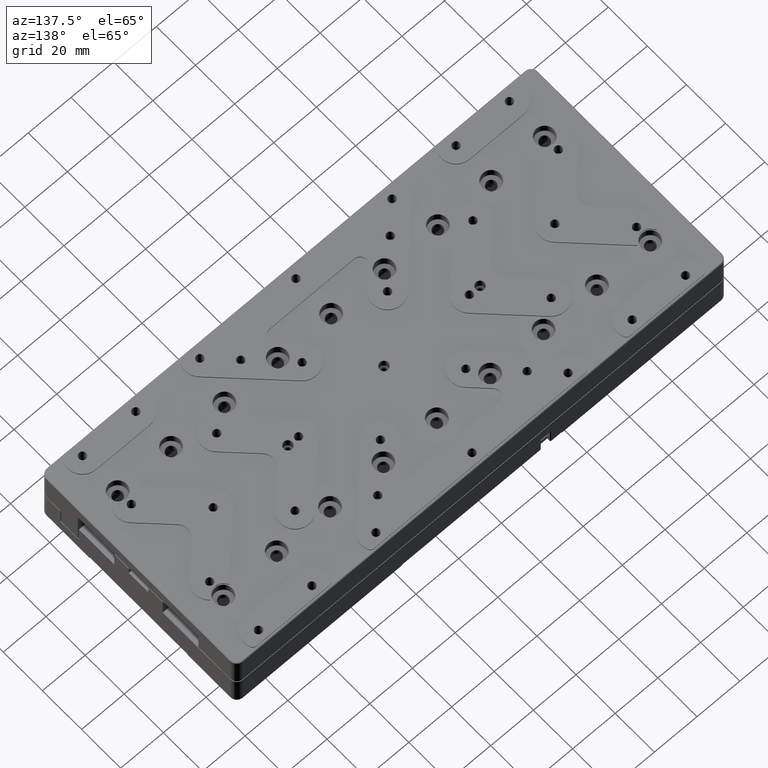
[diagram: clean part render]
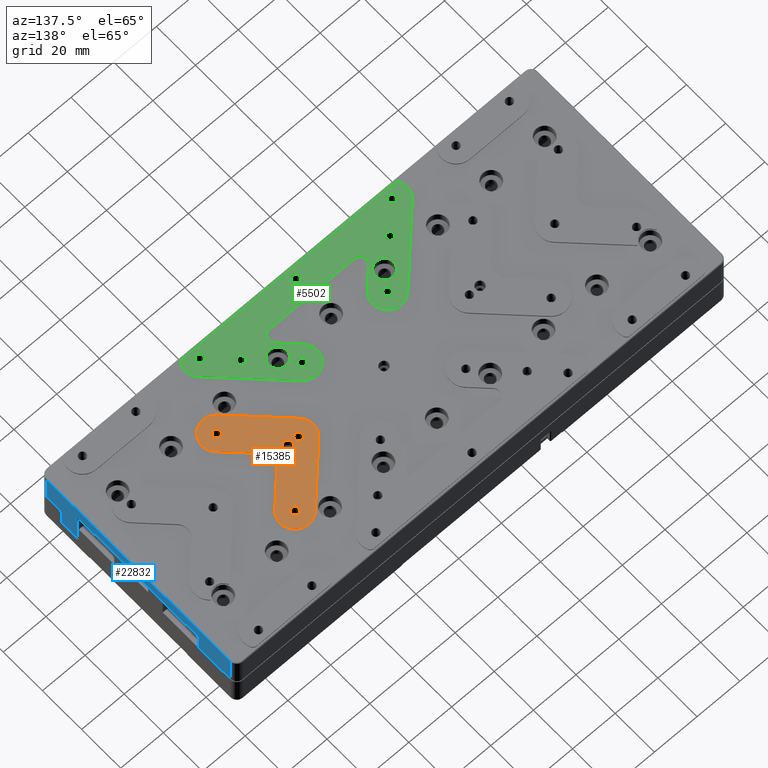
[diagram: same view with three faces highlighted in distinct colors, each labeled with its STEP entity id]
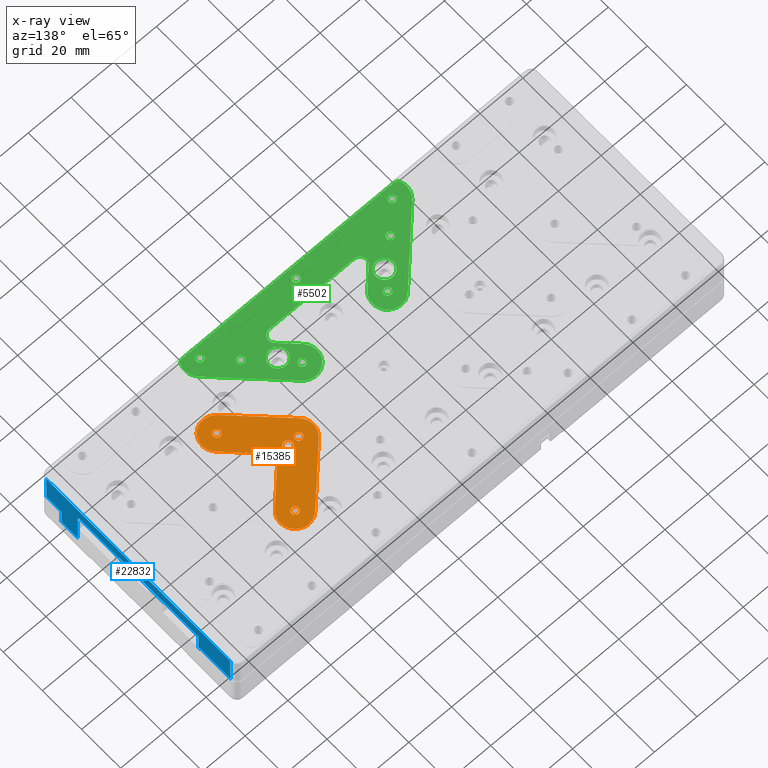
[diagram: x-ray of the same camera — body ghosted, the three highlighted faces saturated]
A machine part, auxiliary view with three faces highlighted in distinct colors.
The next image is the same camera in x-ray (body ghosted, the three faces saturated) — at least one of them is partly hidden behind the body in this view.
Their STEP definitions:

[orange] entity #15385 — the highlighted planar face has unit normal (0, 0, 1).
#314 = LINE ( 'NONE', #17709, #11322 ) ;
#654 = AXIS2_PLACEMENT_3D ( 'NONE', #10701, #25652, #17117 ) ;
#721 = VERTEX_POINT ( 'NONE', #7153 ) ;
#823 = FACE_BOUND ( 'NONE', #15204, .T. ) ;
#989 = EDGE_CURVE ( 'NONE', #9625, #9081, #15177, .T. ) ;
#1246 = DIRECTION ( 'NONE',  ( 1.000000000000000000, 0.000000000000000000, -0.000000000000000000 ) ) ;
#1557 = CARTESIAN_POINT ( 'NONE',  ( 35.05025253168999910, 4.949747468305999654, 15.50000000000000000 ) ) ;
#1886 = DIRECTION ( 'NONE',  ( -0.000000000000000000, -0.000000000000000000, -1.000000000000000000 ) ) ;
#2307 = ORIENTED_EDGE ( 'NONE', *, *, #16614, .T. ) ;
#2621 = ORIENTED_EDGE ( 'NONE', *, *, #24606, .T. ) ;
#2781 = VECTOR ( 'NONE', #17166, 1000.000000000000114 ) ;
#2789 = DIRECTION ( 'NONE',  ( -0.000000000000000000, -0.000000000000000000, -1.000000000000000000 ) ) ;
#3282 = CARTESIAN_POINT ( 'NONE',  ( 64.94974746830999379, 15.05025253169000266, 15.50000000000000000 ) ) ;
#4767 = DIRECTION ( 'NONE',  ( -0.000000000000000000, -0.000000000000000000, -1.000000000000000000 ) ) ;
#5263 = FACE_BOUND ( 'NONE', #21698, .T. ) ;
#5350 = VERTEX_POINT ( 'NONE', #3282 ) ;
#5999 = VERTEX_POINT ( 'NONE', #7360 ) ;
#6330 = DIRECTION ( 'NONE',  ( 1.000000000000000000, 0.000000000000000000, 0.000000000000000000 ) ) ;
#6531 = CARTESIAN_POINT ( 'NONE',  ( 60.00000000000000000, -20.00000000000000000, 15.50000000000000000 ) ) ;
#7152 = CARTESIAN_POINT ( 'NONE',  ( 35.05025253169100097, 4.949747468306999743, 15.50000000000000000 ) ) ;
#7153 = CARTESIAN_POINT ( 'NONE',  ( 61.64999999999999858, -20.00000000000000000, 15.50000000000000000 ) ) ;
#7360 = CARTESIAN_POINT ( 'NONE',  ( 64.94974746830466472, -15.05025253169533173, 15.50000000000000000 ) ) ;
#8470 = LINE ( 'NONE', #14871, #2781 ) ;
#8590 = CIRCLE ( 'NONE', #17699, 1.649999999999998579 ) ;
#8717 = ORIENTED_EDGE ( 'NONE', *, *, #8828, .F. ) ;
#8828 = EDGE_CURVE ( 'NONE', #5999, #23099, #22936, .T. ) ;
#9038 = CARTESIAN_POINT ( 'NONE',  ( 55.05025253168999910, -24.94974746831000090, 15.50000000000000000 ) ) ;
#9081 = VERTEX_POINT ( 'NONE', #23981 ) ;
#9519 = FACE_BOUND ( 'NONE', #24902, .T. ) ;
#9625 = VERTEX_POINT ( 'NONE', #22496 ) ;
#9796 = PLANE ( 'NONE',  #19444 ) ;
#9937 = ORIENTED_EDGE ( 'NONE', *, *, #21035, .T. ) ;
#10356 = DIRECTION ( 'NONE',  ( 0.000000000000000000, 0.000000000000000000, 1.000000000000000000 ) ) ;
#10651 = AXIS2_PLACEMENT_3D ( 'NONE', #6531, #2789, #26031 ) ;
#10701 = CARTESIAN_POINT ( 'NONE',  ( 60.00000000000000000, 20.00000000000000000, 15.50000000000000000 ) ) ;
#10856 = VECTOR ( 'NONE', #23197, 1000.000000000000114 ) ;
#10977 = VERTEX_POINT ( 'NONE', #17968 ) ;
#11017 = DIRECTION ( 'NONE',  ( 1.000000000000000000, 0.000000000000000000, 0.000000000000000000 ) ) ;
#11032 = EDGE_CURVE ( 'NONE', #10977, #21603, #11821, .T. ) ;
#11177 = LINE ( 'NONE', #9038, #24583 ) ;
#11256 = DIRECTION ( 'NONE',  ( 1.000000000000000000, 0.000000000000000000, 0.000000000000000000 ) ) ;
#11322 = VECTOR ( 'NONE', #26384, 1000.000000000000114 ) ;
#11480 = CARTESIAN_POINT ( 'NONE',  ( 60.00000000000000000, 20.00000000000000000, 15.50000000000000000 ) ) ;
#11610 = ORIENTED_EDGE ( 'NONE', *, *, #13582, .T. ) ;
#11821 = LINE ( 'NONE', #1557, #10856 ) ;
#12380 = CARTESIAN_POINT ( 'NONE',  ( 47.00000000000000000, 0.000000000000000000, 15.50000000000000000 ) ) ;
#12464 = DIRECTION ( 'NONE',  ( 1.000000000000000000, 1.776356839400251648E-15, 0.000000000000000000 ) ) ;
#12804 = CIRCLE ( 'NONE', #23277, 7.000000000000006217 ) ;
#12949 = EDGE_CURVE ( 'NONE', #9081, #5350, #8470, .T. ) ;
#13052 = EDGE_CURVE ( 'NONE', #20718, #23099, #11177, .T. ) ;
#13305 = CIRCLE ( 'NONE', #18300, 6.999999999999999112 ) ;
#13503 = ORIENTED_EDGE ( 'NONE', *, *, #13052, .T. ) ;
#13582 = EDGE_CURVE ( 'NONE', #5999, #9625, #314, .T. ) ;
#13848 = CIRCLE ( 'NONE', #654, 1.649999999999998579 ) ;
#14131 = CARTESIAN_POINT ( 'NONE',  ( 41.64999999999999858, 0.000000000000000000, 15.50000000000000000 ) ) ;
#14270 = EDGE_LOOP ( 'NONE', ( #2621 ) ) ;
#14540 = EDGE_CURVE ( 'NONE', #25656, #25656, #24080, .T. ) ;
#14871 = CARTESIAN_POINT ( 'NONE',  ( 64.94974746830999379, 15.05025253169000088, 15.50000000000000000 ) ) ;
#15004 = CARTESIAN_POINT ( 'NONE',  ( 40.00000000000000000, 0.000000000000000000, 15.50000000000000000 ) ) ;
#15177 = CIRCLE ( 'NONE', #18822, 4.999999999999997335 ) ;
#15204 = EDGE_LOOP ( 'NONE', ( #20641 ) ) ;
#15385 = ADVANCED_FACE ( 'NONE', ( #5263, #22623, #823, #9519, #20495 ), #9796, .T. ) ;
#15595 = DIRECTION ( 'NONE',  ( 0.7071067811865474617, -0.7071067811865474617, -0.000000000000000000 ) ) ;
#16217 = ORIENTED_EDGE ( 'NONE', *, *, #989, .T. ) ;
#16301 = DIRECTION ( 'NONE',  ( 1.000000000000000000, 0.000000000000000000, 0.000000000000000000 ) ) ;
#16323 = DIRECTION ( 'NONE',  ( -0.000000000000000000, -0.000000000000000000, -1.000000000000000000 ) ) ;
#16357 = CARTESIAN_POINT ( 'NONE',  ( -115.0000000000000000, 50.00000000000000000, 15.50000000000000000 ) ) ;
#16614 = EDGE_CURVE ( 'NONE', #721, #721, #8590, .T. ) ;
#17117 = DIRECTION ( 'NONE',  ( 1.000000000000000000, 0.000000000000000000, 0.000000000000000000 ) ) ;
#17166 = DIRECTION ( 'NONE',  ( 0.7071067811865474617, 0.7071067811865474617, -0.000000000000000000 ) ) ;
#17299 = CARTESIAN_POINT ( 'NONE',  ( 45.00000000000000000, 0.000000000000000000, 15.50000000000000000 ) ) ;
#17377 = ORIENTED_EDGE ( 'NONE', *, *, #20790, .F. ) ;
#17699 = AXIS2_PLACEMENT_3D ( 'NONE', #19670, #19820, #11256 ) ;
#17709 = CARTESIAN_POINT ( 'NONE',  ( 53.43502884253999952, -3.535533905933000653, 15.50000000000000000 ) ) ;
#17968 = CARTESIAN_POINT ( 'NONE',  ( 55.05025253169308286, 24.94974746830691714, 15.50000000000000000 ) ) ;
#18300 = AXIS2_PLACEMENT_3D ( 'NONE', #15004, #4767, #11017 ) ;
#18647 = ORIENTED_EDGE ( 'NONE', *, *, #12949, .T. ) ;
#18822 = AXIS2_PLACEMENT_3D ( 'NONE', #25427, #16323, #12464 ) ;
#19135 = CARTESIAN_POINT ( 'NONE',  ( 40.00000000000000000, 0.000000000000000000, 15.50000000000000000 ) ) ;
#19444 = AXIS2_PLACEMENT_3D ( 'NONE', #16357, #10356, #1246 ) ;
#19670 = CARTESIAN_POINT ( 'NONE',  ( 60.00000000000000000, -20.00000000000000000, 15.50000000000000000 ) ) ;
#19820 = DIRECTION ( 'NONE',  ( -0.000000000000000000, -0.000000000000000000, -1.000000000000000000 ) ) ;
#19959 = ORIENTED_EDGE ( 'NONE', *, *, #21041, .F. ) ;
#20169 = DIRECTION ( 'NONE',  ( -0.000000000000000000, -0.000000000000000000, -1.000000000000000000 ) ) ;
#20444 = CARTESIAN_POINT ( 'NONE',  ( 35.05025253168899724, -4.949747468308998144, 15.50000000000000000 ) ) ;
#20495 = FACE_OUTER_BOUND ( 'NONE', #27541, .T. ) ;
#20641 = ORIENTED_EDGE ( 'NONE', *, *, #14540, .T. ) ;
#20718 = VERTEX_POINT ( 'NONE', #20444 ) ;
#20790 = EDGE_CURVE ( 'NONE', #10977, #5350, #12804, .T. ) ;
#20989 = DIRECTION ( 'NONE',  ( 1.000000000000000000, 0.000000000000000000, 0.000000000000000000 ) ) ;
#21035 = EDGE_CURVE ( 'NONE', #25345, #25345, #22828, .T. ) ;
#21041 = EDGE_CURVE ( 'NONE', #20718, #21603, #13305, .T. ) ;
#21603 = VERTEX_POINT ( 'NONE', #7152 ) ;
#21698 = EDGE_LOOP ( 'NONE', ( #9937 ) ) ;
#22357 = ORIENTED_EDGE ( 'NONE', *, *, #11032, .T. ) ;
#22496 = CARTESIAN_POINT ( 'NONE',  ( 53.43502884254175456, -3.535533905934760135, 15.50000000000000000 ) ) ;
#22623 = FACE_BOUND ( 'NONE', #14270, .T. ) ;
#22828 = CIRCLE ( 'NONE', #24229, 2.000000000000001776 ) ;
#22936 = CIRCLE ( 'NONE', #10651, 7.000000000000006217 ) ;
#23099 = VERTEX_POINT ( 'NONE', #25627 ) ;
#23152 = AXIS2_PLACEMENT_3D ( 'NONE', #19135, #1886, #20989 ) ;
#23197 = DIRECTION ( 'NONE',  ( -0.7071067811865474617, -0.7071067811865474617, -0.000000000000000000 ) ) ;
#23277 = AXIS2_PLACEMENT_3D ( 'NONE', #11480, #20169, #16301 ) ;
#23693 = DIRECTION ( 'NONE',  ( -0.000000000000000000, -0.000000000000000000, -1.000000000000000000 ) ) ;
#23981 = CARTESIAN_POINT ( 'NONE',  ( 53.43502884254687757, 3.535533905929605591, 15.50000000000000000 ) ) ;
#24080 = CIRCLE ( 'NONE', #23152, 1.649999999999998579 ) ;
#24229 = AXIS2_PLACEMENT_3D ( 'NONE', #17299, #23693, #6330 ) ;
#24583 = VECTOR ( 'NONE', #15595, 1000.000000000000114 ) ;
#24606 = EDGE_CURVE ( 'NONE', #26612, #26612, #13848, .T. ) ;
#24902 = EDGE_LOOP ( 'NONE', ( #2307 ) ) ;
#25345 = VERTEX_POINT ( 'NONE', #12380 ) ;
#25427 = CARTESIAN_POINT ( 'NONE',  ( 56.97056274848000612, -3.230521750563000210E-14, 15.50000000000000000 ) ) ;
#25627 = CARTESIAN_POINT ( 'NONE',  ( 55.05025253168999910, -24.94974746831000090, 15.50000000000000000 ) ) ;
#25652 = DIRECTION ( 'NONE',  ( -0.000000000000000000, -0.000000000000000000, -1.000000000000000000 ) ) ;
#25656 = VERTEX_POINT ( 'NONE', #14131 ) ;
#26031 = DIRECTION ( 'NONE',  ( 1.000000000000000000, -1.982541115402063335E-15, 0.000000000000000000 ) ) ;
#26384 = DIRECTION ( 'NONE',  ( -0.7071067811865474617, 0.7071067811865474617, -0.000000000000000000 ) ) ;
#26612 = VERTEX_POINT ( 'NONE', #26743 ) ;
#26743 = CARTESIAN_POINT ( 'NONE',  ( 61.64999999999999858, 20.00000000000000000, 15.50000000000000000 ) ) ;
#27541 = EDGE_LOOP ( 'NONE', ( #19959, #13503, #8717, #11610, #16217, #18647, #17377, #22357 ) ) ;

[blue] entity #22832 — the highlighted planar face has unit normal (1, 0, 0).
#108 = CARTESIAN_POINT ( 'NONE',  ( 115.0000000000000000, -31.00000000000000000, 0.000000000000000000 ) ) ;
#309 = DIRECTION ( 'NONE',  ( 0.000000000000000000, 0.000000000000000000, -1.000000000000000000 ) ) ;
#442 = CARTESIAN_POINT ( 'NONE',  ( 115.0000000000000000, -39.50000000000000000, -8.000000000000000000 ) ) ;
#960 = VERTEX_POINT ( 'NONE', #20049 ) ;
#1465 = CARTESIAN_POINT ( 'NONE',  ( 115.0000000000000000, 30.60000000000000142, 0.000000000000000000 ) ) ;
#1647 = DIRECTION ( 'NONE',  ( -0.000000000000000000, 1.000000000000000000, 0.000000000000000000 ) ) ;
#1649 = VECTOR ( 'NONE', #1963, 1000.000000000000000 ) ;
#1769 = CARTESIAN_POINT ( 'NONE',  ( 115.0000000000000000, -39.50000000000000000, 0.5000000000000000000 ) ) ;
#1919 = LINE ( 'NONE', #15168, #6347 ) ;
#1963 = DIRECTION ( 'NONE',  ( 0.000000000000000000, 0.000000000000000000, -1.000000000000000000 ) ) ;
#2189 = EDGE_CURVE ( 'NONE', #25880, #19417, #6069, .T. ) ;
#2230 = CARTESIAN_POINT ( 'NONE',  ( 115.0000000000000000, 0.000000000000000000, 9.000000000000001776 ) ) ;
#2252 = VECTOR ( 'NONE', #14847, 1000.000000000000114 ) ;
#2521 = LINE ( 'NONE', #2230, #7740 ) ;
#2534 = CARTESIAN_POINT ( 'NONE',  ( 115.0000000000000000, -31.00000000000000000, -8.000000000000000000 ) ) ;
#2548 = LINE ( 'NONE', #17790, #25433 ) ;
#3141 = EDGE_CURVE ( 'NONE', #15675, #28121, #6960, .T. ) ;
#3239 = EDGE_CURVE ( 'NONE', #7284, #10375, #19631, .T. ) ;
#3961 = EDGE_CURVE ( 'NONE', #28121, #7284, #26373, .T. ) ;
#4300 = B_SPLINE_CURVE_WITH_KNOTS ( 'NONE', 3,
 ( #7907, #16872, #25550, #6053 ),
 .UNSPECIFIED., .F., .F.,
 ( 4, 4 ),
 ( 0.000000000000000000, 1.000000000000000000 ),
 .UNSPECIFIED. ) ;
#4593 = CARTESIAN_POINT ( 'NONE',  ( 115.0000000000000000, 30.60000000000000142, 0.5000000000000000000 ) ) ;
#4832 = ORIENTED_EDGE ( 'NONE', *, *, #13467, .T. ) ;
#5145 = DIRECTION ( 'NONE',  ( -0.000000000000000000, 1.000000000000000000, 0.000000000000000000 ) ) ;
#5845 = CARTESIAN_POINT ( 'NONE',  ( 115.0000000000000000, -46.99985884139437786, 14.89999999931953312 ) ) ;
#6053 = CARTESIAN_POINT ( 'NONE',  ( 115.0000000000000000, 47.00000000000000000, 0.5000000000000002220 ) ) ;
#6069 = LINE ( 'NONE', #16615, #24362 ) ;
#6280 = EDGE_CURVE ( 'NONE', #960, #15675, #1919, .T. ) ;
#6312 = LINE ( 'NONE', #14987, #2252 ) ;
#6347 = VECTOR ( 'NONE', #10894, 1000.000000000000000 ) ;
#6452 = DIRECTION ( 'NONE',  ( 1.000000000000000000, 0.000000000000000000, 0.000000000000000000 ) ) ;
#6960 = LINE ( 'NONE', #15496, #1649 ) ;
#7284 = VERTEX_POINT ( 'NONE', #2534 ) ;
#7648 = VERTEX_POINT ( 'NONE', #25517 ) ;
#7739 = ORIENTED_EDGE ( 'NONE', *, *, #3239, .T. ) ;
#7740 = VECTOR ( 'NONE', #20039, 1000.000000000000000 ) ;
#7907 = CARTESIAN_POINT ( 'NONE',  ( 115.0000742408947616, 46.99985884517875689, 14.89985131649917705 ) ) ;
#8511 = VERTEX_POINT ( 'NONE', #20777 ) ;
#8805 = DIRECTION ( 'NONE',  ( -0.000000000000000000, -0.000000000000000000, 1.000000000000000000 ) ) ;
#8864 = CARTESIAN_POINT ( 'NONE',  ( 115.0000000000000000, 0.000000000000000000, 0.000000000000000000 ) ) ;
#8936 = ORIENTED_EDGE ( 'NONE', *, *, #17080, .F. ) ;
#8987 = ORIENTED_EDGE ( 'NONE', *, *, #6280, .T. ) ;
#10375 = VERTEX_POINT ( 'NONE', #19451 ) ;
#10894 = DIRECTION ( 'NONE',  ( -0.000000000000000000, 1.000000000000000000, 0.000000000000000000 ) ) ;
#11749 = ORIENTED_EDGE ( 'NONE', *, *, #3141, .T. ) ;
#11869 = CARTESIAN_POINT ( 'NONE',  ( 115.0000000000000000, 47.00000000000000000, 0.5000000000000002220 ) ) ;
#12844 = DIRECTION ( 'NONE',  ( 0.000000000000000000, 0.000000000000000000, -1.000000000000000000 ) ) ;
#13303 = AXIS2_PLACEMENT_3D ( 'NONE', #8864, #6452, #309 ) ;
#13467 = EDGE_CURVE ( 'NONE', #7648, #25880, #23112, .T. ) ;
#14662 = EDGE_CURVE ( 'NONE', #23089, #960, #6312, .T. ) ;
#14847 = DIRECTION ( 'NONE',  ( 0.000000000000000000, -9.802680946297762037E-06, -0.9999999999519536553 ) ) ;
#14987 = CARTESIAN_POINT ( 'NONE',  ( 115.0000000000000000, -46.99985884285000282, 14.89985150623999921 ) ) ;
#15168 = CARTESIAN_POINT ( 'NONE',  ( 115.0000000000000000, 0.000000000000000000, 0.5000000000000000000 ) ) ;
#15496 = CARTESIAN_POINT ( 'NONE',  ( 115.0000000000000000, -39.50000000000000000, 0.000000000000000000 ) ) ;
#15675 = VERTEX_POINT ( 'NONE', #1769 ) ;
#15825 = CARTESIAN_POINT ( 'NONE',  ( 115.0000000000000000, 0.000000000000000000, -8.000000000000000000 ) ) ;
#16615 = CARTESIAN_POINT ( 'NONE',  ( 115.0000000000000000, 0.000000000000000000, 0.5000000000000000000 ) ) ;
#16820 = EDGE_LOOP ( 'NONE', ( #19393, #4832, #17827, #27781, #8936, #19352, #8987, #11749, #17278, #7739 ) ) ;
#16872 = CARTESIAN_POINT ( 'NONE',  ( 114.9999999988931449, 46.99990589989074863, 10.09990100416000303 ) ) ;
#17080 = EDGE_CURVE ( 'NONE', #23089, #8511, #2548, .T. ) ;
#17278 = ORIENTED_EDGE ( 'NONE', *, *, #3961, .T. ) ;
#17566 = PLANE ( 'NONE',  #13303 ) ;
#17595 = VECTOR ( 'NONE', #8805, 1000.000000000000000 ) ;
#17790 = CARTESIAN_POINT ( 'NONE',  ( 115.0000000000000000, 0.000000000000000000, 14.89999999999996838 ) ) ;
#17827 = ORIENTED_EDGE ( 'NONE', *, *, #2189, .T. ) ;
#18873 = EDGE_CURVE ( 'NONE', #10375, #7648, #2521, .T. ) ;
#19206 = EDGE_CURVE ( 'NONE', #8511, #19417, #4300, .T. ) ;
#19352 = ORIENTED_EDGE ( 'NONE', *, *, #14662, .T. ) ;
#19393 = ORIENTED_EDGE ( 'NONE', *, *, #18873, .T. ) ;
#19417 = VERTEX_POINT ( 'NONE', #11869 ) ;
#19451 = CARTESIAN_POINT ( 'NONE',  ( 115.0000000000000000, -31.00000000000000000, 9.000000000000001776 ) ) ;
#19631 = LINE ( 'NONE', #108, #17595 ) ;
#20039 = DIRECTION ( 'NONE',  ( -0.000000000000000000, 1.000000000000000000, 0.000000000000000000 ) ) ;
#20049 = CARTESIAN_POINT ( 'NONE',  ( 115.0000000000000000, -47.00000000000000000, 0.4999999999999998890 ) ) ;
#20777 = CARTESIAN_POINT ( 'NONE',  ( 115.0000742408947616, 46.99985884517875689, 14.89985131649917705 ) ) ;
#21624 = DIRECTION ( 'NONE',  ( 0.000000000000000000, 1.000000000000000000, 0.000000000000000000 ) ) ;
#22832 = ADVANCED_FACE ( 'NONE', ( #28071 ), #17566, .T. ) ;
#23089 = VERTEX_POINT ( 'NONE', #5845 ) ;
#23112 = LINE ( 'NONE', #1465, #27730 ) ;
#24362 = VECTOR ( 'NONE', #1647, 1000.000000000000000 ) ;
#24885 = VECTOR ( 'NONE', #5145, 1000.000000000000000 ) ;
#25433 = VECTOR ( 'NONE', #21624, 1000.000000000000000 ) ;
#25517 = CARTESIAN_POINT ( 'NONE',  ( 115.0000000000000000, 30.60000000000000142, 9.000000000000001776 ) ) ;
#25550 = CARTESIAN_POINT ( 'NONE',  ( 115.0000000000000000, 46.99995294994537431, 5.299950502080001513 ) ) ;
#25880 = VERTEX_POINT ( 'NONE', #4593 ) ;
#26373 = LINE ( 'NONE', #15825, #24885 ) ;
#27730 = VECTOR ( 'NONE', #12844, 1000.000000000000000 ) ;
#27781 = ORIENTED_EDGE ( 'NONE', *, *, #19206, .F. ) ;
#28071 = FACE_OUTER_BOUND ( 'NONE', #16820, .T. ) ;
#28121 = VERTEX_POINT ( 'NONE', #442 ) ;

[green] entity #5502 — the highlighted planar face has unit normal (0, 0, 1).
#100 = CARTESIAN_POINT ( 'NONE',  ( -20.00000000000000000, -20.00000000000000000, 15.50000000000000000 ) ) ;
#119 = ORIENTED_EDGE ( 'NONE', *, *, #9957, .F. ) ;
#132 = DIRECTION ( 'NONE',  ( 1.000000000000000000, 0.000000000000000000, -0.000000000000000000 ) ) ;
#241 = DIRECTION ( 'NONE',  ( -0.000000000000000000, -0.000000000000000000, -1.000000000000000000 ) ) ;
#401 = VERTEX_POINT ( 'NONE', #14162 ) ;
#479 = CIRCLE ( 'NONE', #5478, 4.125000000000000000 ) ;
#506 = DIRECTION ( 'NONE',  ( -0.000000000000000000, -0.000000000000000000, -1.000000000000000000 ) ) ;
#700 = ORIENTED_EDGE ( 'NONE', *, *, #25327, .T. ) ;
#1035 = DIRECTION ( 'NONE',  ( 1.000000000000000000, 0.000000000000000000, 0.000000000000000000 ) ) ;
#1112 = DIRECTION ( 'NONE',  ( -0.000000000000000000, -0.000000000000000000, -1.000000000000000000 ) ) ;
#1235 = LINE ( 'NONE', #16059, #21721 ) ;
#1362 = CIRCLE ( 'NONE', #2290, 2.999999999999999112 ) ;
#1368 = EDGE_CURVE ( 'NONE', #11413, #21099, #22034, .T. ) ;
#1488 = EDGE_LOOP ( 'NONE', ( #14505 ) ) ;
#1660 = DIRECTION ( 'NONE',  ( -0.7071067811865474617, -0.7071067811865474617, -0.000000000000000000 ) ) ;
#1954 = ORIENTED_EDGE ( 'NONE', *, *, #27981, .T. ) ;
#2076 = CARTESIAN_POINT ( 'NONE',  ( 45.00000000000000000, -45.00000000000000000, 15.50000000000000000 ) ) ;
#2240 = DIRECTION ( 'NONE',  ( 1.000000000000000000, 0.000000000000000000, 0.000000000000000000 ) ) ;
#2290 = AXIS2_PLACEMENT_3D ( 'NONE', #8500, #241, #6234 ) ;
#2333 = EDGE_CURVE ( 'NONE', #28165, #28165, #26181, .T. ) ;
#2454 = CARTESIAN_POINT ( 'NONE',  ( 0.000000000000000000, -45.00000000000000000, 15.50000000000000000 ) ) ;
#2569 = VERTEX_POINT ( 'NONE', #5614 ) ;
#2631 = CARTESIAN_POINT ( 'NONE',  ( -25.00000000000000000, -27.00000000000000000, 15.50000000000000000 ) ) ;
#2931 = AXIS2_PLACEMENT_3D ( 'NONE', #27339, #16542, #17105 ) ;
#2965 = DIRECTION ( 'NONE',  ( -0.000000000000000000, -0.000000000000000000, -1.000000000000000000 ) ) ;
#3032 = ORIENTED_EDGE ( 'NONE', *, *, #19771, .T. ) ;
#3129 = CARTESIAN_POINT ( 'NONE',  ( 19.85786437627000112, -37.00000000000000711, 15.50000000000000000 ) ) ;
#3268 = CARTESIAN_POINT ( 'NONE',  ( -49.94974746830792611, -40.05025253169208099, 15.50000000000000000 ) ) ;
#3294 = CIRCLE ( 'NONE', #18771, 6.999999999999999112 ) ;
#3307 = EDGE_CURVE ( 'NONE', #10945, #10945, #8476, .T. ) ;
#3376 = CARTESIAN_POINT ( 'NONE',  ( -19.85786437627000112, -37.00000000000000000, 15.50000000000000000 ) ) ;
#3404 = ORIENTED_EDGE ( 'NONE', *, *, #15524, .T. ) ;
#3626 = ORIENTED_EDGE ( 'NONE', *, *, #27500, .F. ) ;
#3813 = CARTESIAN_POINT ( 'NONE',  ( -45.00000000000000000, -45.00000000000000000, 15.50000000000000000 ) ) ;
#3829 = EDGE_CURVE ( 'NONE', #401, #401, #19879, .T. ) ;
#3847 = ORIENTED_EDGE ( 'NONE', *, *, #8489, .T. ) ;
#3870 = VECTOR ( 'NONE', #23451, 1000.000000000000114 ) ;
#4042 = AXIS2_PLACEMENT_3D ( 'NONE', #3813, #7664, #27578 ) ;
#4084 = AXIS2_PLACEMENT_3D ( 'NONE', #4416, #21783, #132 ) ;
#4134 = FACE_BOUND ( 'NONE', #13194, .T. ) ;
#4241 = DIRECTION ( 'NONE',  ( 1.000000000000000000, 0.000000000000000000, 0.000000000000000000 ) ) ;
#4394 = DIRECTION ( 'NONE',  ( 1.000000000000000000, 0.000000000000000000, 0.000000000000000000 ) ) ;
#4406 = VERTEX_POINT ( 'NONE', #7253 ) ;
#4416 = CARTESIAN_POINT ( 'NONE',  ( -115.0000000000000000, 50.00000000000000000, 15.50000000000000000 ) ) ;
#4445 = CARTESIAN_POINT ( 'NONE',  ( -18.35000000000000142, -20.00000000000000000, 15.50000000000000000 ) ) ;
#4512 = EDGE_CURVE ( 'NONE', #16773, #11413, #1235, .T. ) ;
#4602 = VECTOR ( 'NONE', #15178, 1000.000000000000000 ) ;
#5006 = CARTESIAN_POINT ( 'NONE',  ( -24.94974746830791901, -15.05025253169208277, 15.50000000000000000 ) ) ;
#5009 = VERTEX_POINT ( 'NONE', #24918 ) ;
#5250 = CARTESIAN_POINT ( 'NONE',  ( 29.12500000000000000, -27.00000000000000000, 15.50000000000000000 ) ) ;
#5329 = DIRECTION ( 'NONE',  ( -0.000000000000000000, -0.000000000000000000, -1.000000000000000000 ) ) ;
#5478 = AXIS2_PLACEMENT_3D ( 'NONE', #2631, #17872, #23698 ) ;
#5502 = ADVANCED_FACE ( 'NONE', ( #13234, #12802, #14944, #28039, #8537, #10810, #4134, #17095, #12953, #15087 ), #6706, .T. ) ;
#5614 = CARTESIAN_POINT ( 'NONE',  ( -49.58257569496001338, -49.00000000000000000, 15.50000000000000000 ) ) ;
#5783 = EDGE_CURVE ( 'NONE', #11086, #18131, #28138, .T. ) ;
#5830 = CIRCLE ( 'NONE', #14012, 6.999999999999999112 ) ;
#5861 = EDGE_CURVE ( 'NONE', #19494, #9245, #21390, .T. ) ;
#6085 = ORIENTED_EDGE ( 'NONE', *, *, #14334, .T. ) ;
#6116 = CARTESIAN_POINT ( 'NONE',  ( 46.64999999999999858, -45.00000000000000000, 15.50000000000000000 ) ) ;
#6234 = DIRECTION ( 'NONE',  ( 1.000000000000000000, 4.625929269271486900E-15, 0.000000000000000000 ) ) ;
#6354 = DIRECTION ( 'NONE',  ( 1.000000000000000000, 0.000000000000000000, 0.000000000000000000 ) ) ;
#6367 = LINE ( 'NONE', #23026, #3870 ) ;
#6418 = DIRECTION ( 'NONE',  ( -1.000000000000000000, 0.000000000000000000, 0.000000000000000000 ) ) ;
#6706 = PLANE ( 'NONE',  #4084 ) ;
#6835 = DIRECTION ( 'NONE',  ( 1.000000000000000000, 0.000000000000000000, 0.000000000000000000 ) ) ;
#6963 = ORIENTED_EDGE ( 'NONE', *, *, #17886, .T. ) ;
#7035 = CARTESIAN_POINT ( 'NONE',  ( 24.94974746831000090, -15.05025253169000088, 15.50000000000000000 ) ) ;
#7253 = CARTESIAN_POINT ( 'NONE',  ( 49.58257569496001338, -49.00000000000000000, 15.50000000000000000 ) ) ;
#7664 = DIRECTION ( 'NONE',  ( -0.000000000000000000, -0.000000000000000000, -1.000000000000000000 ) ) ;
#7820 = ORIENTED_EDGE ( 'NONE', *, *, #24881, .T. ) ;
#8040 = DIRECTION ( 'NONE',  ( 1.000000000000000000, 0.000000000000000000, 0.000000000000000000 ) ) ;
#8476 = CIRCLE ( 'NONE', #11667, 1.649999999999998579 ) ;
#8489 = EDGE_CURVE ( 'NONE', #25977, #25977, #26561, .T. ) ;
#8490 = LINE ( 'NONE', #23452, #17284 ) ;
#8500 = CARTESIAN_POINT ( 'NONE',  ( 19.85786437627000112, -34.00000000000000000, 15.50000000000000000 ) ) ;
#8537 = FACE_BOUND ( 'NONE', #16368, .T. ) ;
#8674 = CARTESIAN_POINT ( 'NONE',  ( 51.41560597294053991, -47.79999999999935767, 15.50000000000000000 ) ) ;
#8814 = ORIENTED_EDGE ( 'NONE', *, *, #4512, .T. ) ;
#8817 = CARTESIAN_POINT ( 'NONE',  ( 36.64999999999999858, -35.00000000000000000, 15.50000000000000000 ) ) ;
#9087 = ORIENTED_EDGE ( 'NONE', *, *, #21466, .F. ) ;
#9245 = VERTEX_POINT ( 'NONE', #7035 ) ;
#9692 = AXIS2_PLACEMENT_3D ( 'NONE', #26468, #11087, #6835 ) ;
#9704 = CARTESIAN_POINT ( 'NONE',  ( -15.05025253169000088, -24.94974746831000090, 15.50000000000000000 ) ) ;
#9957 = EDGE_CURVE ( 'NONE', #18161, #4406, #16151, .T. ) ;
#10283 = CARTESIAN_POINT ( 'NONE',  ( 15.05025253169458388, -24.94974746830541790, 15.50000000000000000 ) ) ;
#10344 = VERTEX_POINT ( 'NONE', #25584 ) ;
#10756 = CARTESIAN_POINT ( 'NONE',  ( 114.0000000000000000, -49.00000000000000000, 15.50000000000000000 ) ) ;
#10802 = ORIENTED_EDGE ( 'NONE', *, *, #19376, .T. ) ;
#10810 = FACE_BOUND ( 'NONE', #24434, .T. ) ;
#10844 = CARTESIAN_POINT ( 'NONE',  ( -15.05025253169000088, -24.94974746831000090, 15.50000000000000000 ) ) ;
#10927 = DIRECTION ( 'NONE',  ( -0.000000000000000000, -0.000000000000000000, -1.000000000000000000 ) ) ;
#10934 = VERTEX_POINT ( 'NONE', #11548 ) ;
#10945 = VERTEX_POINT ( 'NONE', #8817 ) ;
#10985 = VERTEX_POINT ( 'NONE', #4445 ) ;
#11086 = VERTEX_POINT ( 'NONE', #27597 ) ;
#11087 = DIRECTION ( 'NONE',  ( -0.000000000000000000, -0.000000000000000000, -1.000000000000000000 ) ) ;
#11169 = CARTESIAN_POINT ( 'NONE',  ( -21.97918471982732314, -31.87867965644268509, 15.50000000000000000 ) ) ;
#11361 = DIRECTION ( 'NONE',  ( 1.000000000000000000, 0.000000000000000000, 0.000000000000000000 ) ) ;
#11413 = VERTEX_POINT ( 'NONE', #3376 ) ;
#11548 = CARTESIAN_POINT ( 'NONE',  ( 21.97918471982999833, -31.87867965643999923, 15.50000000000000000 ) ) ;
#11667 = AXIS2_PLACEMENT_3D ( 'NONE', #16330, #2965, #11361 ) ;
#12148 = CARTESIAN_POINT ( 'NONE',  ( -20.00000000000000000, -20.00000000000000000, 15.50000000000000000 ) ) ;
#12269 = DIRECTION ( 'NONE',  ( 0.7071067811865474617, 0.7071067811865474617, -0.000000000000000000 ) ) ;
#12579 = CARTESIAN_POINT ( 'NONE',  ( 25.00000000000000000, -27.00000000000000000, 15.50000000000000000 ) ) ;
#12744 = VERTEX_POINT ( 'NONE', #20588 ) ;
#12796 = CARTESIAN_POINT ( 'NONE',  ( -43.35000000000000142, -45.00000000000000000, 15.50000000000000000 ) ) ;
#12802 = FACE_BOUND ( 'NONE', #1488, .T. ) ;
#12891 = LINE ( 'NONE', #10756, #4602 ) ;
#12893 = ORIENTED_EDGE ( 'NONE', *, *, #16308, .T. ) ;
#12911 = DIRECTION ( 'NONE',  ( -0.000000000000000000, -0.000000000000000000, -1.000000000000000000 ) ) ;
#12953 = FACE_BOUND ( 'NONE', #21036, .T. ) ;
#12981 = DIRECTION ( 'NONE',  ( -0.7071067811865474617, 0.7071067811865474617, -0.000000000000000000 ) ) ;
#13194 = EDGE_LOOP ( 'NONE', ( #1954 ) ) ;
#13234 = FACE_BOUND ( 'NONE', #15564, .T. ) ;
#13318 = EDGE_LOOP ( 'NONE', ( #10802 ) ) ;
#13385 = AXIS2_PLACEMENT_3D ( 'NONE', #23930, #17527, #6418 ) ;
#13528 = ORIENTED_EDGE ( 'NONE', *, *, #5783, .F. ) ;
#13676 = ORIENTED_EDGE ( 'NONE', *, *, #3307, .T. ) ;
#13746 = CARTESIAN_POINT ( 'NONE',  ( 20.00000000000000000, -20.00000000000000000, 15.50000000000000000 ) ) ;
#14012 = AXIS2_PLACEMENT_3D ( 'NONE', #12148, #5329, #1035 ) ;
#14162 = CARTESIAN_POINT ( 'NONE',  ( 1.649999999999999911, -45.00000000000000000, 15.50000000000000000 ) ) ;
#14334 = EDGE_CURVE ( 'NONE', #10934, #16773, #1362, .T. ) ;
#14355 = ORIENTED_EDGE ( 'NONE', *, *, #18699, .T. ) ;
#14461 = EDGE_CURVE ( 'NONE', #21717, #25857, #5830, .T. ) ;
#14487 = DIRECTION ( 'NONE',  ( -1.000000000000000000, -0.000000000000000000, -0.000000000000000000 ) ) ;
#14505 = ORIENTED_EDGE ( 'NONE', *, *, #22036, .T. ) ;
#14797 = CIRCLE ( 'NONE', #17998, 4.125000000000000000 ) ;
#14834 = DIRECTION ( 'NONE',  ( -0.000000000000000000, -0.000000000000000000, -1.000000000000000000 ) ) ;
#14921 = CARTESIAN_POINT ( 'NONE',  ( 49.58257569496000627, -47.00000000000000000, 15.50000000000000000 ) ) ;
#14944 = FACE_BOUND ( 'NONE', #17022, .T. ) ;
#15087 = FACE_OUTER_BOUND ( 'NONE', #23171, .T. ) ;
#15178 = DIRECTION ( 'NONE',  ( 1.000000000000000000, 0.000000000000000000, -0.000000000000000000 ) ) ;
#15268 = CARTESIAN_POINT ( 'NONE',  ( 45.00000000000000000, -45.00000000000000000, 15.50000000000000000 ) ) ;
#15497 = ORIENTED_EDGE ( 'NONE', *, *, #3829, .T. ) ;
#15524 = EDGE_CURVE ( 'NONE', #10985, #10985, #18992, .T. ) ;
#15564 = EDGE_LOOP ( 'NONE', ( #15497 ) ) ;
#16059 = CARTESIAN_POINT ( 'NONE',  ( -19.85786437627000112, -37.00000000000000000, 15.50000000000000000 ) ) ;
#16151 = CIRCLE ( 'NONE', #18431, 2.000000000000001776 ) ;
#16308 = EDGE_CURVE ( 'NONE', #21099, #25857, #27343, .T. ) ;
#16330 = CARTESIAN_POINT ( 'NONE',  ( 35.00000000000000000, -35.00000000000000000, 15.50000000000000000 ) ) ;
#16368 = EDGE_LOOP ( 'NONE', ( #13676 ) ) ;
#16542 = DIRECTION ( 'NONE',  ( -0.000000000000000000, -0.000000000000000000, -1.000000000000000000 ) ) ;
#16773 = VERTEX_POINT ( 'NONE', #3129 ) ;
#17022 = EDGE_LOOP ( 'NONE', ( #18825 ) ) ;
#17095 = FACE_BOUND ( 'NONE', #13318, .T. ) ;
#17105 = DIRECTION ( 'NONE',  ( 1.000000000000000000, 0.000000000000000000, 0.000000000000000000 ) ) ;
#17210 = DIRECTION ( 'NONE',  ( -0.000000000000000000, -0.000000000000000000, -1.000000000000000000 ) ) ;
#17284 = VECTOR ( 'NONE', #1660, 1000.000000000000114 ) ;
#17527 = DIRECTION ( 'NONE',  ( 0.000000000000000000, 0.000000000000000000, -1.000000000000000000 ) ) ;
#17633 = AXIS2_PLACEMENT_3D ( 'NONE', #100, #10927, #4241 ) ;
#17872 = DIRECTION ( 'NONE',  ( -0.000000000000000000, -0.000000000000000000, -1.000000000000000000 ) ) ;
#17886 = EDGE_CURVE ( 'NONE', #12744, #9245, #21391, .T. ) ;
#17998 = AXIS2_PLACEMENT_3D ( 'NONE', #12579, #18724, #8040 ) ;
#18131 = VERTEX_POINT ( 'NONE', #3268 ) ;
#18161 = VERTEX_POINT ( 'NONE', #8674 ) ;
#18354 = DIRECTION ( 'NONE',  ( 1.000000000000000000, 0.000000000000000000, 0.000000000000000000 ) ) ;
#18431 = AXIS2_PLACEMENT_3D ( 'NONE', #14921, #17210, #4394 ) ;
#18699 = EDGE_CURVE ( 'NONE', #21717, #18131, #8490, .T. ) ;
#18724 = DIRECTION ( 'NONE',  ( -0.000000000000000000, -0.000000000000000000, -1.000000000000000000 ) ) ;
#18771 = AXIS2_PLACEMENT_3D ( 'NONE', #15268, #25945, #21393 ) ;
#18825 = ORIENTED_EDGE ( 'NONE', *, *, #2333, .T. ) ;
#18845 = AXIS2_PLACEMENT_3D ( 'NONE', #22625, #1112, #18354 ) ;
#18992 = CIRCLE ( 'NONE', #17633, 1.649999999999998579 ) ;
#19324 = CIRCLE ( 'NONE', #25680, 1.649999999999998579 ) ;
#19376 = EDGE_CURVE ( 'NONE', #5009, #5009, #479, .T. ) ;
#19494 = VERTEX_POINT ( 'NONE', #10283 ) ;
#19771 = EDGE_CURVE ( 'NONE', #2569, #4406, #12891, .T. ) ;
#19879 = CIRCLE ( 'NONE', #20786, 1.649999999999999911 ) ;
#20588 = CARTESIAN_POINT ( 'NONE',  ( 49.94974746830791901, -40.05025253169208810, 15.50000000000000000 ) ) ;
#20613 = CIRCLE ( 'NONE', #9692, 1.649999999999998579 ) ;
#20786 = AXIS2_PLACEMENT_3D ( 'NONE', #2454, #14834, #25657 ) ;
#21036 = EDGE_LOOP ( 'NONE', ( #700 ) ) ;
#21099 = VERTEX_POINT ( 'NONE', #11169 ) ;
#21108 = EDGE_LOOP ( 'NONE', ( #3847 ) ) ;
#21390 = CIRCLE ( 'NONE', #26791, 6.999999999999999112 ) ;
#21391 = LINE ( 'NONE', #23956, #26775 ) ;
#21393 = DIRECTION ( 'NONE',  ( 1.000000000000000000, 0.000000000000000000, 0.000000000000000000 ) ) ;
#21413 = ORIENTED_EDGE ( 'NONE', *, *, #14461, .F. ) ;
#21466 = EDGE_CURVE ( 'NONE', #12744, #18161, #3294, .T. ) ;
#21717 = VERTEX_POINT ( 'NONE', #5006 ) ;
#21721 = VECTOR ( 'NONE', #14487, 1000.000000000000000 ) ;
#21747 = CARTESIAN_POINT ( 'NONE',  ( 20.00000000000000000, -20.00000000000000000, 15.50000000000000000 ) ) ;
#21783 = DIRECTION ( 'NONE',  ( 0.000000000000000000, 0.000000000000000000, 1.000000000000000000 ) ) ;
#22034 = CIRCLE ( 'NONE', #2931, 2.999999999999999112 ) ;
#22036 = EDGE_CURVE ( 'NONE', #28034, #28034, #20613, .T. ) ;
#22335 = ORIENTED_EDGE ( 'NONE', *, *, #5861, .F. ) ;
#22625 = CARTESIAN_POINT ( 'NONE',  ( -35.00000000000000000, -35.00000000000000000, 15.50000000000000000 ) ) ;
#23026 = CARTESIAN_POINT ( 'NONE',  ( 21.97918471982999833, -31.87867965643999923, 15.50000000000000000 ) ) ;
#23171 = EDGE_LOOP ( 'NONE', ( #13528, #3626, #3032, #119, #9087, #6963, #22335, #7820, #6085, #8814, #25595, #12893, #21413, #14355 ) ) ;
#23451 = DIRECTION ( 'NONE',  ( 0.7071067811865474617, -0.7071067811865474617, -0.000000000000000000 ) ) ;
#23452 = CARTESIAN_POINT ( 'NONE',  ( -49.94974746831000800, -40.05025253168999910, 15.50000000000000000 ) ) ;
#23694 = CARTESIAN_POINT ( 'NONE',  ( -33.35000000000000142, -35.00000000000000000, 15.50000000000000000 ) ) ;
#23698 = DIRECTION ( 'NONE',  ( 1.000000000000000000, 0.000000000000000000, 0.000000000000000000 ) ) ;
#23712 = DIRECTION ( 'NONE',  ( -0.000000000000000000, -0.000000000000000000, -1.000000000000000000 ) ) ;
#23930 = CARTESIAN_POINT ( 'NONE',  ( -49.58257569496000627, -47.00000000000000000, 15.50000000000000000 ) ) ;
#23956 = CARTESIAN_POINT ( 'NONE',  ( 24.94974746831000090, -15.05025253169000088, 15.50000000000000000 ) ) ;
#24434 = EDGE_LOOP ( 'NONE', ( #3404 ) ) ;
#24439 = DIRECTION ( 'NONE',  ( 1.000000000000000000, 0.000000000000000000, 0.000000000000000000 ) ) ;
#24881 = EDGE_CURVE ( 'NONE', #19494, #10934, #6367, .T. ) ;
#24918 = CARTESIAN_POINT ( 'NONE',  ( -20.87500000000000000, -27.00000000000000000, 15.50000000000000000 ) ) ;
#25327 = EDGE_CURVE ( 'NONE', #26876, #26876, #14797, .T. ) ;
#25584 = CARTESIAN_POINT ( 'NONE',  ( 21.64999999999999858, -20.00000000000000000, 15.50000000000000000 ) ) ;
#25595 = ORIENTED_EDGE ( 'NONE', *, *, #1368, .T. ) ;
#25657 = DIRECTION ( 'NONE',  ( 1.000000000000000000, 0.000000000000000000, 0.000000000000000000 ) ) ;
#25680 = AXIS2_PLACEMENT_3D ( 'NONE', #13746, #506, #24439 ) ;
#25857 = VERTEX_POINT ( 'NONE', #10844 ) ;
#25945 = DIRECTION ( 'NONE',  ( -0.000000000000000000, -0.000000000000000000, -1.000000000000000000 ) ) ;
#25977 = VERTEX_POINT ( 'NONE', #23694 ) ;
#26181 = CIRCLE ( 'NONE', #27527, 1.649999999999998579 ) ;
#26468 = CARTESIAN_POINT ( 'NONE',  ( -45.00000000000000000, -45.00000000000000000, 15.50000000000000000 ) ) ;
#26561 = CIRCLE ( 'NONE', #18845, 1.649999999999998579 ) ;
#26775 = VECTOR ( 'NONE', #12981, 1000.000000000000114 ) ;
#26791 = AXIS2_PLACEMENT_3D ( 'NONE', #21747, #12911, #2240 ) ;
#26876 = VERTEX_POINT ( 'NONE', #5250 ) ;
#27339 = CARTESIAN_POINT ( 'NONE',  ( -19.85786437627000112, -34.00000000000000000, 15.50000000000000000 ) ) ;
#27343 = LINE ( 'NONE', #9704, #27646 ) ;
#27500 = EDGE_CURVE ( 'NONE', #2569, #11086, #27905, .T. ) ;
#27527 = AXIS2_PLACEMENT_3D ( 'NONE', #2076, #23712, #6354 ) ;
#27578 = DIRECTION ( 'NONE',  ( 1.000000000000000000, 0.000000000000000000, 0.000000000000000000 ) ) ;
#27597 = CARTESIAN_POINT ( 'NONE',  ( -51.41560597293878487, -47.79999999999859028, 15.50000000000000000 ) ) ;
#27646 = VECTOR ( 'NONE', #12269, 1000.000000000000114 ) ;
#27905 = CIRCLE ( 'NONE', #13385, 2.000000000000001776 ) ;
#27981 = EDGE_CURVE ( 'NONE', #10344, #10344, #19324, .T. ) ;
#28034 = VERTEX_POINT ( 'NONE', #12796 ) ;
#28039 = FACE_BOUND ( 'NONE', #21108, .T. ) ;
#28138 = CIRCLE ( 'NONE', #4042, 6.999999999999999112 ) ;
#28165 = VERTEX_POINT ( 'NONE', #6116 ) ;